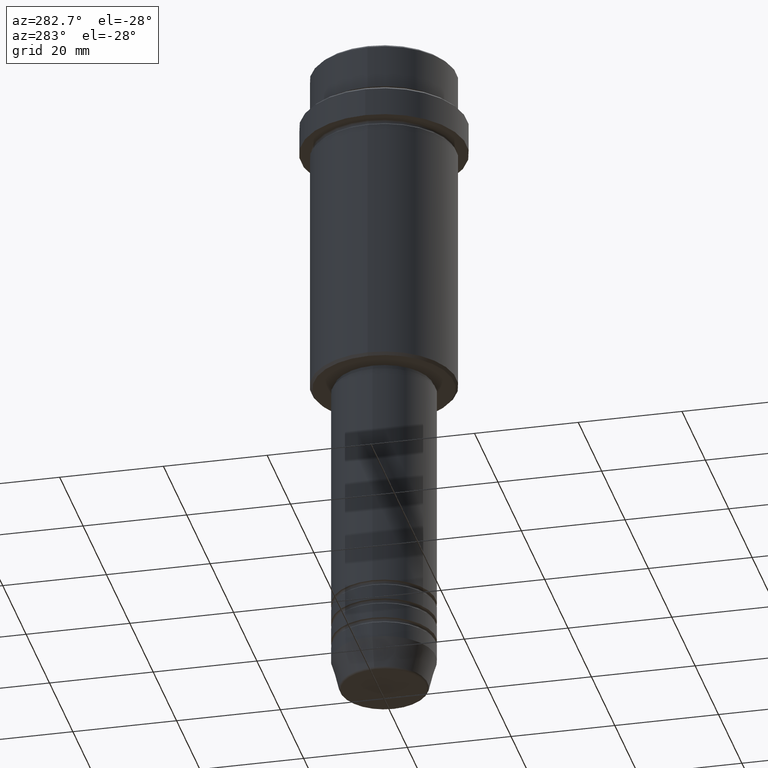
[diagram: clean part render]
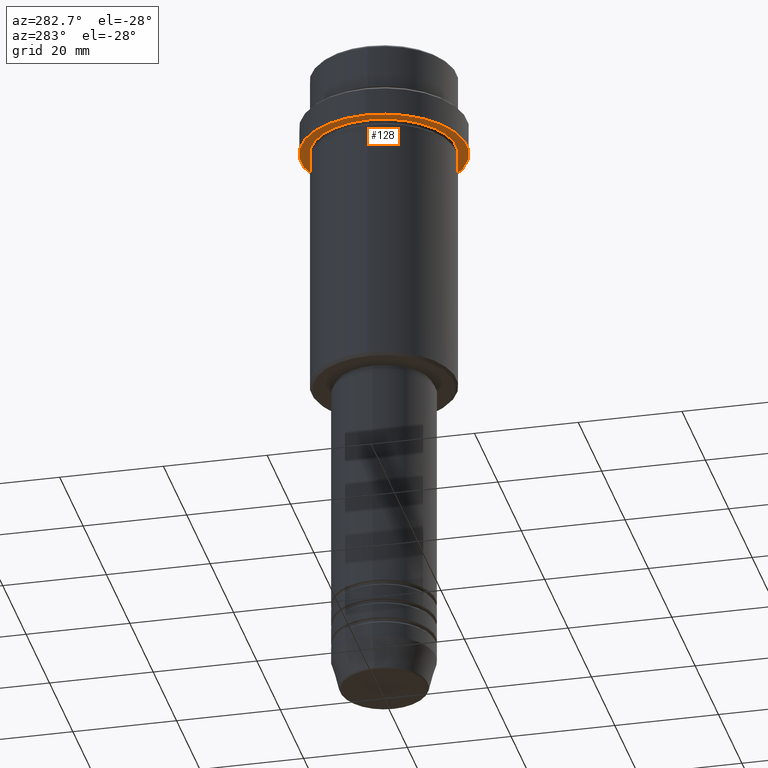
[diagram: same view with one face highlighted and labeled with its STEP entity id]
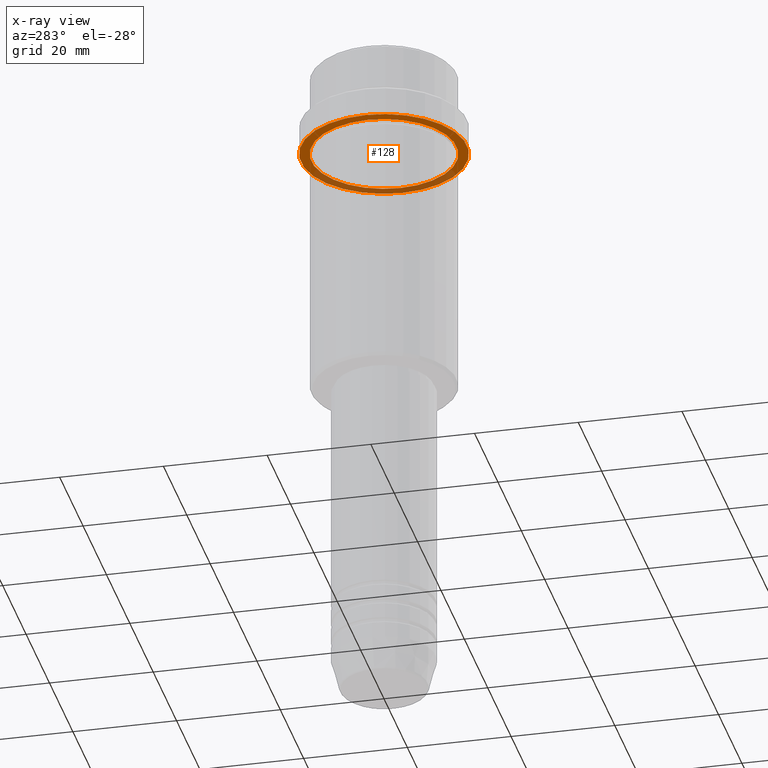
[diagram: x-ray of the same camera — body ghosted, the highlighted face saturated]
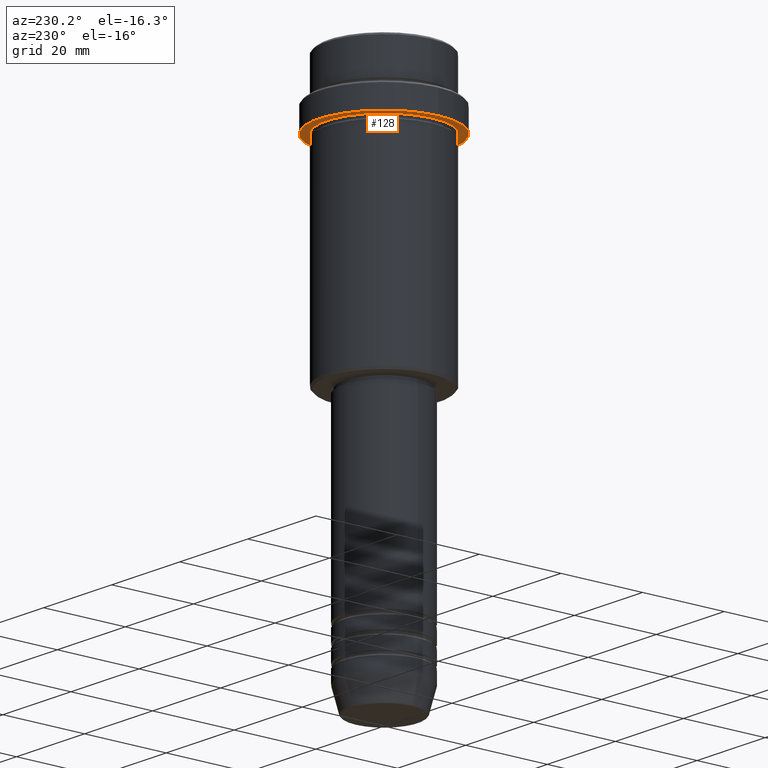
[diagram: same view with one face highlighted and labeled with its STEP entity id]
A machine part, auxiliary view. The second image highlights one B-rep face of the part: STEP entity #128.
The next image is the same camera in x-ray: the body ghosted, the highlighted face saturated — about 34% of this face is hidden behind the body in this view.
A second angle (auxiliary view) of the same face is appended — the face is thin or edge-on in the first view.
In plain terms, the highlighted planar face has unit normal (0, 0, -1).
Its self-contained STEP definition (entity closure, byte-faithful):
#45 = DIRECTION ( 'NONE',  ( -0.000000000000000000, -0.000000000000000000, 1.000000000000000000 ) ) ;
#94 = AXIS2_PLACEMENT_3D ( 'NONE', #924, #45, #807 ) ;
#128 = ADVANCED_FACE ( 'NONE', ( #1023, #737 ), #631, .T. ) ;
#131 = DIRECTION ( 'NONE',  ( 1.000000000000000000, 0.000000000000000000, 0.000000000000000000 ) ) ;
#219 = DIRECTION ( 'NONE',  ( -0.000000000000000000, -0.000000000000000000, 1.000000000000000000 ) ) ;
#228 = CIRCLE ( 'NONE', #249, 13.99999999999998224 ) ;
#249 = AXIS2_PLACEMENT_3D ( 'NONE', #875, #219, #1209 ) ;
#301 = VERTEX_POINT ( 'NONE', #662 ) ;
#331 = VERTEX_POINT ( 'NONE', #1093 ) ;
#365 = EDGE_CURVE ( 'NONE', #991, #768, #590, .T. ) ;
#391 = CIRCLE ( 'NONE', #937, 15.99999999999998579 ) ;
#398 = CARTESIAN_POINT ( 'NONE',  ( 0.000000000000000000, 15.99999999999998579, -16.00000000000000000 ) ) ;
#422 = ORIENTED_EDGE ( 'NONE', *, *, #914, .F. ) ;
#496 = EDGE_LOOP ( 'NONE', ( #422, #843 ) ) ;
#509 = CIRCLE ( 'NONE', #94, 13.99999999999998224 ) ;
#545 = CARTESIAN_POINT ( 'NONE',  ( 15.99999999999998579, 0.000000000000000000, -16.00000000000000000 ) ) ;
#590 = CIRCLE ( 'NONE', #638, 15.99999999999998579 ) ;
#631 = PLANE ( 'NONE',  #1028 ) ;
#638 = AXIS2_PLACEMENT_3D ( 'NONE', #772, #1102, #1318 ) ;
#662 = CARTESIAN_POINT ( 'NONE',  ( 13.99999999999998224, 1.714505518806292469E-15, -16.00000000000000000 ) ) ;
#689 = EDGE_LOOP ( 'NONE', ( #1350, #1319 ) ) ;
#737 = FACE_OUTER_BOUND ( 'NONE', #496, .T. ) ;
#768 = VERTEX_POINT ( 'NONE', #545 ) ;
#772 = CARTESIAN_POINT ( 'NONE',  ( 0.000000000000000000, 0.000000000000000000, -16.00000000000000000 ) ) ;
#790 = CARTESIAN_POINT ( 'NONE',  ( -15.99999999999998579, 1.959434878635763554E-15, -16.00000000000000000 ) ) ;
#807 = DIRECTION ( 'NONE',  ( -1.000000000000000000, 0.000000000000000000, 0.000000000000000000 ) ) ;
#838 = DIRECTION ( 'NONE',  ( 0.000000000000000000, 0.000000000000000000, -1.000000000000000000 ) ) ;
#843 = ORIENTED_EDGE ( 'NONE', *, *, #365, .F. ) ;
#875 = CARTESIAN_POINT ( 'NONE',  ( 0.000000000000000000, 0.000000000000000000, -16.00000000000000000 ) ) ;
#914 = EDGE_CURVE ( 'NONE', #768, #991, #391, .T. ) ;
#916 = DIRECTION ( 'NONE',  ( -0.000000000000000000, -0.000000000000000000, 1.000000000000000000 ) ) ;
#924 = CARTESIAN_POINT ( 'NONE',  ( 0.000000000000000000, 0.000000000000000000, -16.00000000000000000 ) ) ;
#937 = AXIS2_PLACEMENT_3D ( 'NONE', #1126, #916, #131 ) ;
#991 = VERTEX_POINT ( 'NONE', #790 ) ;
#1023 = FACE_BOUND ( 'NONE', #689, .T. ) ;
#1028 = AXIS2_PLACEMENT_3D ( 'NONE', #398, #838, #1262 ) ;
#1093 = CARTESIAN_POINT ( 'NONE',  ( -13.99999999999998224, 0.000000000000000000, -16.00000000000000000 ) ) ;
#1102 = DIRECTION ( 'NONE',  ( -0.000000000000000000, -0.000000000000000000, 1.000000000000000000 ) ) ;
#1126 = CARTESIAN_POINT ( 'NONE',  ( 0.000000000000000000, 0.000000000000000000, -16.00000000000000000 ) ) ;
#1209 = DIRECTION ( 'NONE',  ( -1.000000000000000000, 0.000000000000000000, 0.000000000000000000 ) ) ;
#1229 = EDGE_CURVE ( 'NONE', #301, #331, #228, .T. ) ;
#1262 = DIRECTION ( 'NONE',  ( -1.000000000000000000, 0.000000000000000000, -0.000000000000000000 ) ) ;
#1318 = DIRECTION ( 'NONE',  ( 1.000000000000000000, 0.000000000000000000, 0.000000000000000000 ) ) ;
#1319 = ORIENTED_EDGE ( 'NONE', *, *, #1229, .T. ) ;
#1350 = ORIENTED_EDGE ( 'NONE', *, *, #1374, .T. ) ;
#1374 = EDGE_CURVE ( 'NONE', #331, #301, #509, .T. ) ;